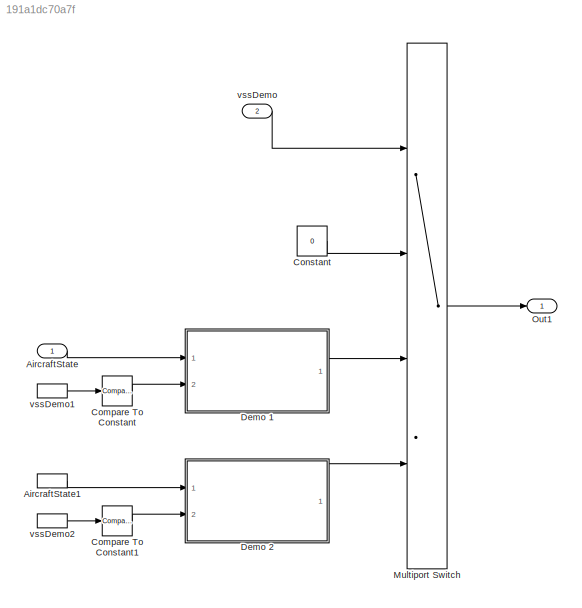
MODEL slx_191a1dc70a7f
KIND model
CONFIG AbsTol = auto
CONFIG EnableMultiTasking = off
CONFIG FixedStep = 0.01
CONFIG MaxStep = auto
CONFIG MinStep = auto
CONFIG RelTol = 1e-3
CONFIG SampleTimeConstraint = Unconstrained
CONFIG Solver = FixedStepDiscrete
CONFIG SolverName = FixedStepDiscrete
CONFIG StartTime = 0.0
CONFIG StopTime = 10.0
BLOCK [Inport] AircraftState
  IconDisplay = Port number
  OutDataTypeStr = Bus: INPUTS
BLOCK [InportShadow] AircraftState1
  IconDisplay = Port number
  OutDataTypeStr = Bus: INPUTS
BLOCK [Reference] Compare To Constant  REF=simulink/Logic and Bit
Operations/Compare
To Constant
  Ports = [1, 1]
  SourceBlock = simulink/Logic and Bit\nOperations/Compare\nTo Constant
  SourceType = Compare To Constant
BLOCK [Reference] Compare To Constant1  REF=simulink/Logic and Bit
Operations/Compare
To Constant
  Ports = [1, 1]
  SourceBlock = simulink/Logic and Bit\nOperations/Compare\nTo Constant
  SourceType = Compare To Constant
BLOCK [Constant] Constant
  Value = 0
BLOCK [ModelReference] Demo 1
  ModelNameDialog = demo_vss1.slx
  ModelReferenceVersion = 1.8
  Ports = [2, 1]
  Variant = off
BLOCK [ModelReference] Demo 2
  ModelNameDialog = demo_vss2.slx
  ModelReferenceVersion = 1.9
  Ports = [2, 1]
  Variant = off
BLOCK [MultiPortSwitch] Multiport Switch
  DataPortOrder = Zero-based contiguous
  DiagnosticForDefault = None
  InputSameDT = off
  Ports = [4, 1]
  SaturateOnIntegerOverflow = off
BLOCK [Outport] Out1
  IconDisplay = Port number
BLOCK [Inport] vssDemo
  IconDisplay = Port number
  Port = 2
BLOCK [InportShadow] vssDemo1
  IconDisplay = Port number
  Port = 2
BLOCK [InportShadow] vssDemo2
  IconDisplay = Port number
  Port = 2
LINE AircraftState1:1 -> Demo 2:1
LINE AircraftState:1 -> Demo 1:1
LINE Compare To Constant1:1 -> Demo 2:2
LINE Compare To Constant:1 -> Demo 1:2
LINE Constant:1 -> Multiport Switch:2
LINE Demo 1:1 -> Multiport Switch:3
LINE Demo 2:1 -> Multiport Switch:4
LINE Multiport Switch:1 -> Out1:1
LINE vssDemo1:1 -> Compare To Constant:1
LINE vssDemo2:1 -> Compare To Constant1:1
LINE vssDemo:1 -> Multiport Switch:1
